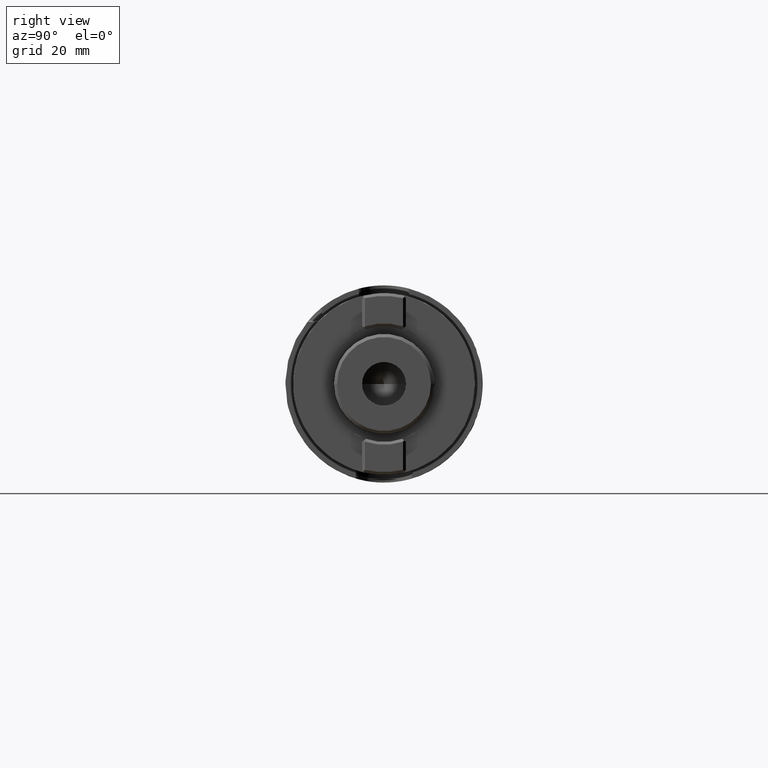
[diagram: clean part render]
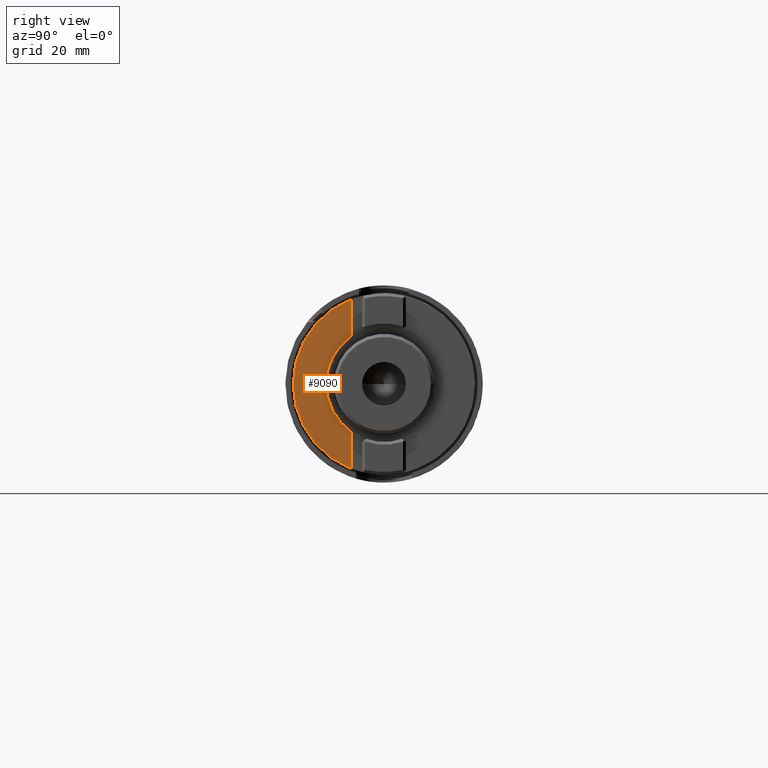
[diagram: same view with one face highlighted and labeled with its STEP entity id]
A machine part, right view. The second image highlights one B-rep face of the part: STEP entity #9090.
In plain terms, the highlighted planar face has unit normal (-1, 0, 0).
Its self-contained STEP definition (entity closure, byte-faithful):
#7537=CARTESIAN_POINT('',(0.E0,1.4E1,0.E0));
#7538=DIRECTION('',(0.E0,1.E0,0.E0));
#7539=DIRECTION('',(-3.645689655172E-1,0.E0,-9.311763900474E-1));
#7540=AXIS2_PLACEMENT_3D('',#7537,#7538,#7539);
#7766=CARTESIAN_POINT('',(0.E0,1.4E1,0.E0));
#7767=DIRECTION('',(0.E0,1.E0,0.E0));
#7768=DIRECTION('',(-1.E0,0.E0,0.E0));
#7769=AXIS2_PLACEMENT_3D('',#7766,#7767,#7768);
#7814=CARTESIAN_POINT('',(0.E0,1.4E1,0.E0));
#7815=DIRECTION('',(0.E0,1.E0,0.E0));
#7816=DIRECTION('',(-1.E0,0.E0,0.E0));
#7817=AXIS2_PLACEMENT_3D('',#7814,#7815,#7816);
#7819=CARTESIAN_POINT('',(0.E0,1.4E1,0.E0));
#7820=DIRECTION('',(0.E0,1.E0,0.E0));
#7821=DIRECTION('',(-5.714864864865E-1,0.E0,-8.206114767436E-1));
#7822=AXIS2_PLACEMENT_3D('',#7819,#7820,#7821);
#8115=DIRECTION('',(0.E0,0.E0,1.E0));
#8116=VECTOR('',#8115,1.182280299162E1);
#8117=CARTESIAN_POINT('',(-1.05725E1,1.4E1,1.518131231976E1));
#8118=LINE('',#8117,#8116);
#8123=DIRECTION('',(0.E0,0.E0,1.E0));
#8124=VECTOR('',#8123,1.182280299162E1);
#8125=CARTESIAN_POINT('',(-1.05725E1,1.4E1,-2.700411531137E1));
#8126=LINE('',#8125,#8124);
#8424=CARTESIAN_POINT('',(-1.05725E1,1.4E1,-2.700411531137E1));
#8425=CARTESIAN_POINT('',(-2.9E1,1.4E1,0.E0));
#8426=VERTEX_POINT('',#8424);
#8427=VERTEX_POINT('',#8425);
#8430=CARTESIAN_POINT('',(-1.05725E1,1.4E1,2.700411531137E1));
#8431=VERTEX_POINT('',#8430);
#8446=CARTESIAN_POINT('',(-1.85E1,1.4E1,0.E0));
#8447=CARTESIAN_POINT('',(-1.05725E1,1.4E1,1.518131231976E1));
#8448=VERTEX_POINT('',#8446);
#8449=VERTEX_POINT('',#8447);
#8450=CARTESIAN_POINT('',(-1.05725E1,1.4E1,-1.518131231976E1));
#8451=VERTEX_POINT('',#8450);
#9073=CARTESIAN_POINT('',(-2.9E1,1.4E1,-3.482917893342E1));
#9074=DIRECTION('',(0.E0,-1.E0,0.E0));
#9075=DIRECTION('',(1.E0,0.E0,0.E0));
#9076=AXIS2_PLACEMENT_3D('',#9073,#9074,#9075);
#9077=PLANE('',#9076);
#9079=ORIENTED_EDGE('',*,*,#9078,.T.);
#9081=ORIENTED_EDGE('',*,*,#9080,.T.);
#9082=ORIENTED_EDGE('',*,*,#9037,.F.);
#9083=ORIENTED_EDGE('',*,*,#8794,.F.);
#9085=ORIENTED_EDGE('',*,*,#9084,.T.);
#9087=ORIENTED_EDGE('',*,*,#9086,.T.);
#9088=EDGE_LOOP('',(#9079,#9081,#9082,#9083,#9085,#9087));
#9089=FACE_OUTER_BOUND('',#9088,.F.);
#9090=ADVANCED_FACE('',(#9089),#9077,.F.);
#7541=CIRCLE('',#7540,2.9E1);
#7770=CIRCLE('',#7769,2.9E1);
#7818=CIRCLE('',#7817,1.85E1);
#7823=CIRCLE('',#7822,1.85E1);
#8794=EDGE_CURVE('',#8426,#8427,#7541,.T.);
#9037=EDGE_CURVE('',#8427,#8431,#7770,.T.);
#9078=EDGE_CURVE('',#8448,#8449,#7818,.T.);
#9080=EDGE_CURVE('',#8449,#8431,#8118,.T.);
#9084=EDGE_CURVE('',#8426,#8451,#8126,.T.);
#9086=EDGE_CURVE('',#8451,#8448,#7823,.T.);